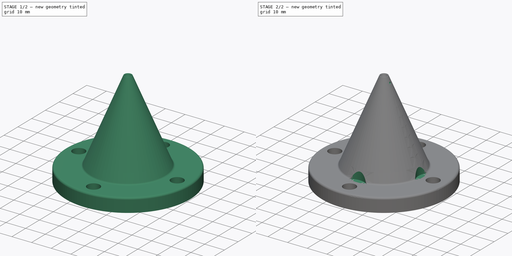
[diagram: build sequence overview — one tinted view per stage of 2, left to right]
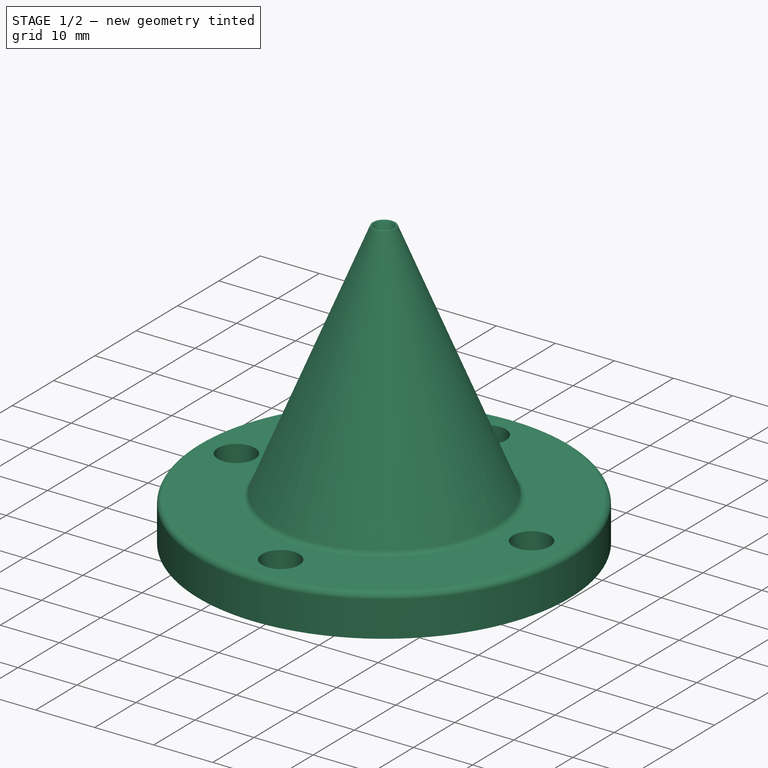
[diagram: stage 1 of 2 — iso view after this stage's code; geometry added in this stage tinted green]
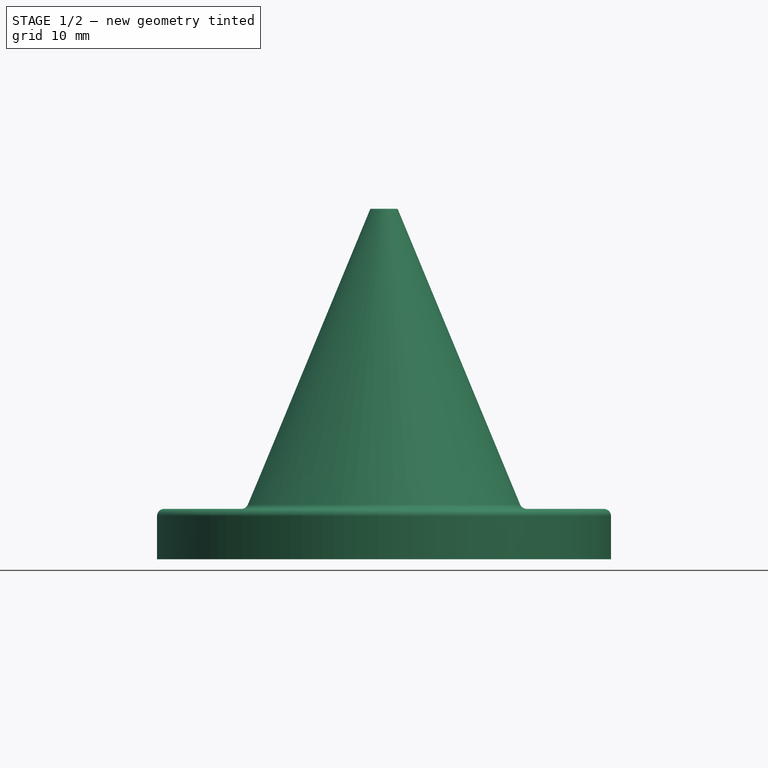
[diagram: stage 1 of 2 — front view after this stage's code; geometry added in this stage tinted green]
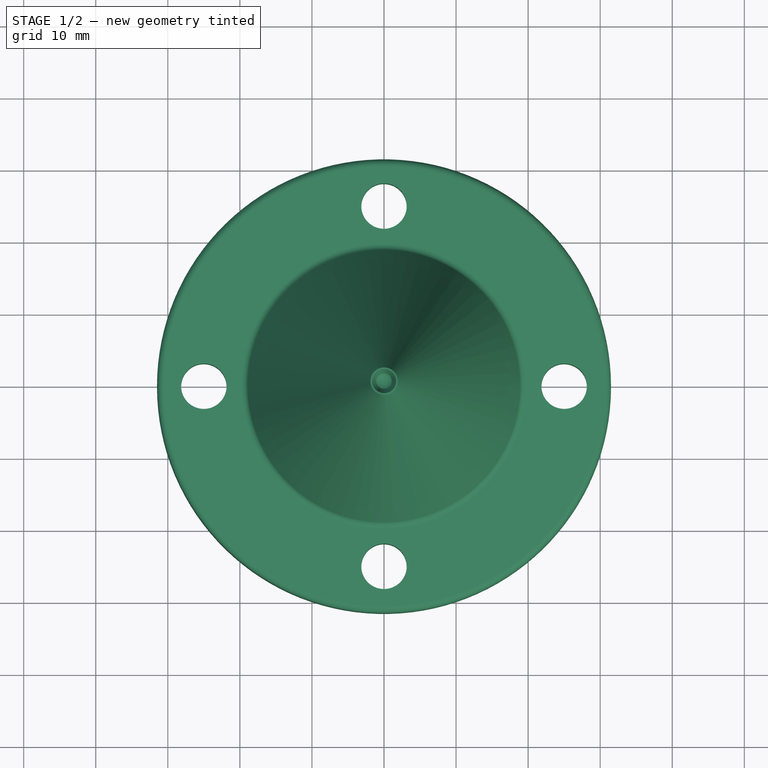
[diagram: stage 1 of 2 — top view after this stage's code; geometry added in this stage tinted green]
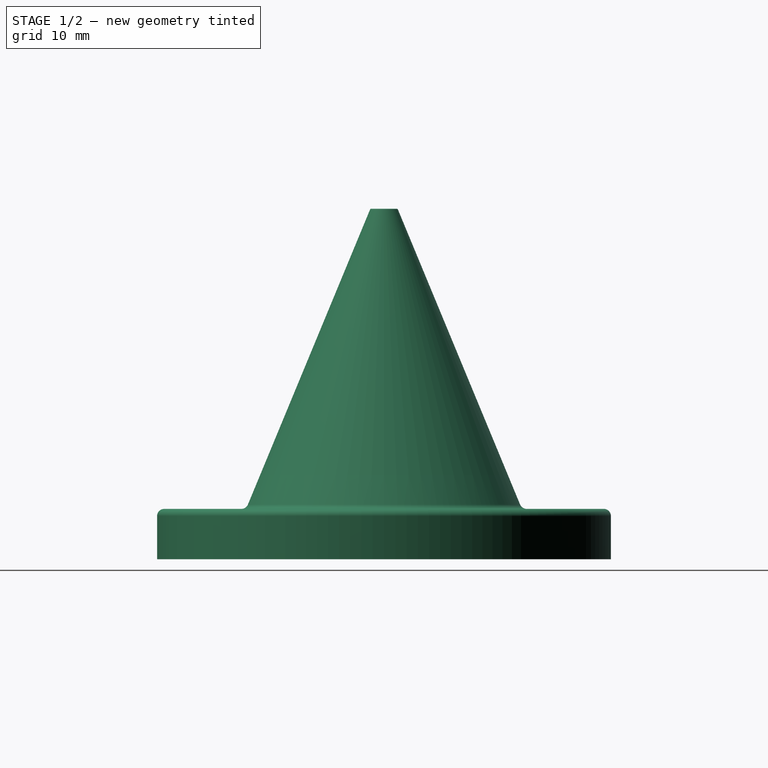
[diagram: stage 1 of 2 — right view after this stage's code; geometry added in this stage tinted green]
FCSTD DOCUMENT  (FreeCAD 0.20R29603 (Git))
Label: markup-tool
License: All rights reserved
LicenseURL: http://en.wikipedia.org/wiki/All_rights_reserved
objects: Sketcher::SketchObject×5, PartDesign::Pocket×2, PartDesign::Plane×2, PartDesign::Revolution×1, PartDesign::SubtractivePipe×1, PartDesign::Body×1, App::Part×1
note: 16 computed .brp shape members not serialized (recipe doc carries the construction recipe); baked Part::Feature solids carry a one-line shape summary decoded from their .brp

FEATURE [Sketcher::SketchObject] Sketch003
  FullyConstrained = true
  MapMode = 5
  Placement = pos=(0,0,0) rot=(1,0,0;1.5708rad)
  Support = -> [XZ_Plane004]
  sketch-geometry (15):
    g0: LineSegment StartX=0 StartY=0 StartZ=0 EndX=31.5 EndY=0 EndZ=0
    g1: LineSegment StartX=31.5 StartY=0 StartZ=0 EndX=31.5 EndY=6 EndZ=0
    g2: LineSegment StartX=30.5 StartY=7 StartZ=0 EndX=19.8092 EndY=7 EndZ=0
    g3: LineSegment StartX=18.8853 StartY=7.61732 StartZ=0 EndX=1.92593 EndY=48.5608 EndZ=0
    g4: ArcOfCircle CenterX=19.8092 CenterY=8 CenterZ=0 NormalX=0 NormalY=0 NormalZ=1 AngleXU=0 Radius=1 StartAngle=3.53429 EndAngle=4.71239
    g5: ArcOfCircle CenterX=30.5 CenterY=6 CenterZ=0 NormalX=0 NormalY=0 NormalZ=1 AngleXU=0 Radius=1 StartAngle=0 EndAngle=1.5708
    g6: LineSegment StartX=0 StartY=0 StartZ=0 EndX=-3e-16 EndY=46.8 EndZ=0
    g7: Circle CenterX=0 CenterY=48.5 CenterZ=0 NormalX=0 NormalY=0 NormalZ=1 AngleXU=0 Radius=1.5
    g8: ArcOfCircle CenterX=0 CenterY=48.5 CenterZ=0 NormalX=0 NormalY=0 NormalZ=1 AngleXU=0 Radius=1.7 StartAngle=4.71239 EndAngle=5.40053
    g9: ArcOfCircle CenterX=1.78735 CenterY=48.5034 CenterZ=0 NormalX=0 NormalY=0 NormalZ=1 AngleXU=0 Radius=0.15 StartAngle=0.392699 EndAngle=2.74889
    g10: LineSegment StartX=1.1311 StartY=49.4852 StartZ=0 EndX=1.90046 EndY=48.6019 EndZ=0
    g11: LineSegment StartX=1.64877 StartY=48.5608 StartZ=0 EndX=1.07967 EndY=47.1869 EndZ=0
    g12: GeomPoint X=0 Y=50 Z=0
    g13: GeomPoint X=0 Y=47 Z=0
    g14: GeomPoint X=1.49877 Y=48.5608 Z=0
  constraints (38):
    c: Coincident(g0,g-1)
    c: Horizontal(g0)
    c: Coincident(g1,g0)
    c: Vertical(g1)
    c: Horizontal(g2)
    c: Distance(g0) = 31.5
    c: Angle(g-2,g3) = 0.392699
    c: Tangent(g2,g4) = 1.5708
    c: Tangent(g3,g4) = 1.5708
    c: Radius(g4) = 1  'fillet'
    c: Tangent(g1,g5) = -1.5708
    c: Tangent(g2,g5) = -1.5708
    c: Equal(g5,g4)
    c: DistanceY(g0,g2) = 7
    c: Coincident(g6,g0)
    c: PointOnObject(g6,g-2)
    c: PointOnObject(g7,g-2)
    c: Diameter(g7) = 3
    c: Coincident(g8,g6)
    c: Tangent(g9,g3) = -1.5708
    c: Radius(g9) = 0.15
    c: Tangent(g10,g9) = 1.5708
    c: Tangent(g10,g7) = 1.5708
    c: Tangent(g7,g11)
    c: PointOnObject(g12,g7)
    c: PointOnObject(g12,g-2)
    c: DistanceY(g0,g12) = 50
    c: Angle(g-2,g10) = 0.716568
    c: Coincident(g8,g11)
    c: Coincident(g8,g7)
    c: Tangent(g11,g9) = -1.5708
    c: PointOnObject(g13,g7)
    c: PointOnObject(g13,g-2)
    c: DistanceY(g6,g13) = 0.2
    c: Angle(g11,g3) = 0.785398
    c: PointOnObject(g14,g7)
    c: Horizontal(g9,g14)
    c: Distance(g9,g14) = 0.15
FEATURE [Sketcher::SketchObject] Sketch004
  FullyConstrained = true
  MapMode = 5
  Support = -> [XY_Plane004]
  sketch-geometry (5):
    g0: Circle CenterX=0 CenterY=0 CenterZ=0 NormalX=0 NormalY=0 NormalZ=1 AngleXU=0 Radius=25
    g1: Circle CenterX=25 CenterY=0 CenterZ=0 NormalX=0 NormalY=0 NormalZ=1 AngleXU=0 Radius=3.15
    g2: Circle CenterX=-25 CenterY=0 CenterZ=0 NormalX=0 NormalY=0 NormalZ=1 AngleXU=0 Radius=3.15
    g3: Circle CenterX=0 CenterY=25 CenterZ=0 NormalX=0 NormalY=0 NormalZ=1 AngleXU=0 Radius=3.15
    g4: Circle CenterX=0 CenterY=-25 CenterZ=0 NormalX=0 NormalY=0 NormalZ=1 AngleXU=0 Radius=3.15
  constraints (14):
    c: Diameter(g0) = 50
    c: PointOnObject(g1,g-1)
    c: PointOnObject(g2,g-1)
    c: PointOnObject(g3,g-2)
    c: PointOnObject(g4,g-2)
    c: Equal(g1,g3)
    c: Equal(g3,g2)
    c: Equal(g2,g4)
    c: Coincident(g0,g-1)
    c: Diameter(g1) = 6.3
    c: PointOnObject(g1,g0)
    c: PointOnObject(g3,g0)
    c: PointOnObject(g2,g0)
    c: PointOnObject(g4,g0)
FEATURE [PartDesign::Revolution] Revolution
  Angle = 360
  Axis = (0,-2e-16,1)
  Base = (0,0,0)
  Placement = pos=(0,0,0) rot=(1,0,0;1.5708rad)
  Profile = -> Sketch003
  ReferenceAxis = -> Sketch003 [V_Axis]
  Reversed = true
FEATURE [PartDesign::Pocket] Pocket
  BaseFeature = -> Revolution
  Direction = (0,0,-1)
  Length = 5
  Length2 = 5
  Placement = pos=(0,0,0) rot=(1,0,0;1.5708rad)
  Profile = -> Sketch004
  ReferenceAxis = -> Sketch004 [N_Axis]
  Reversed = true
  Type = 1
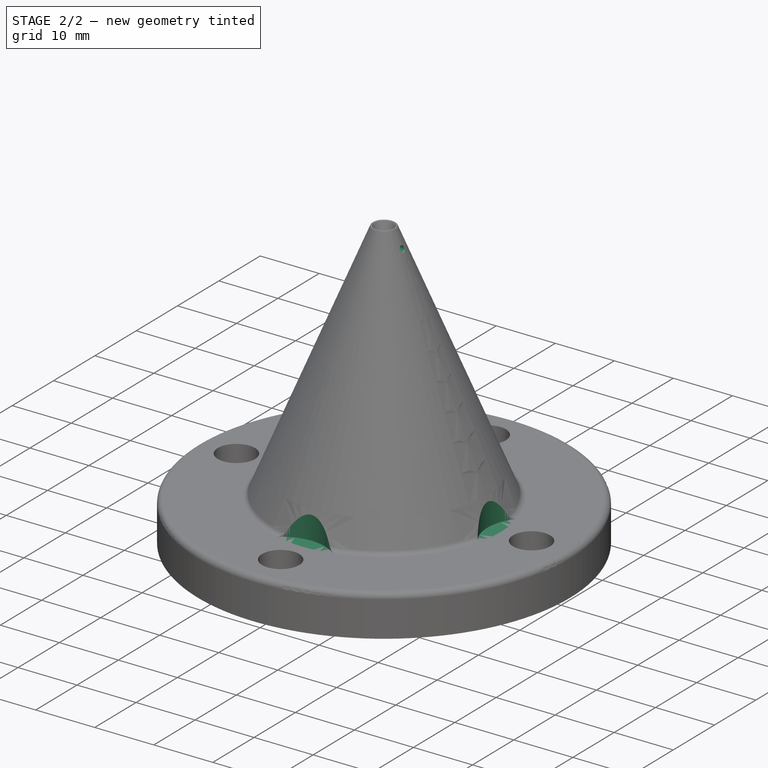
[diagram: stage 2 of 2 — iso view after this stage's code; geometry added in this stage tinted green]
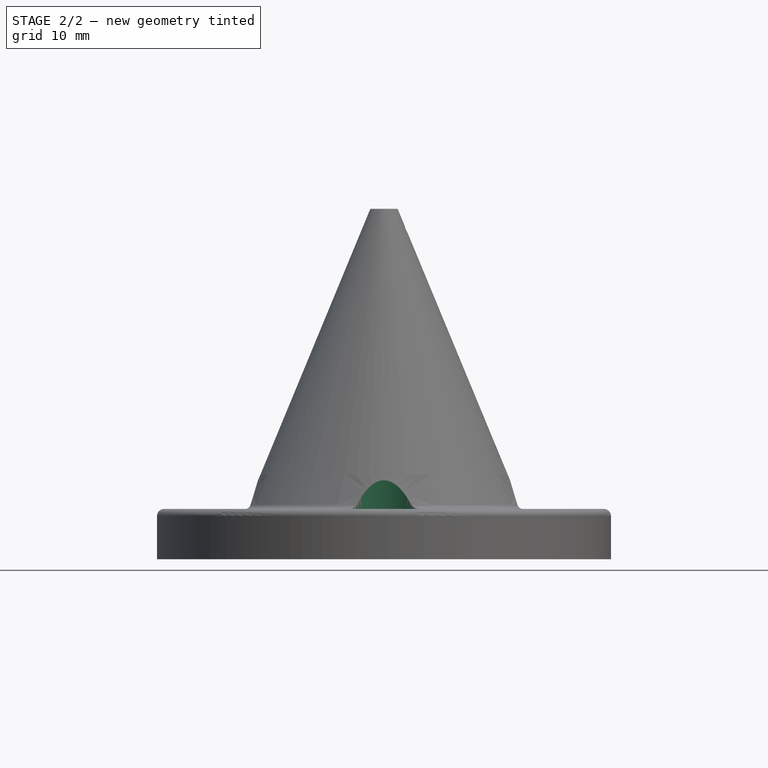
[diagram: stage 2 of 2 — front view after this stage's code; geometry added in this stage tinted green]
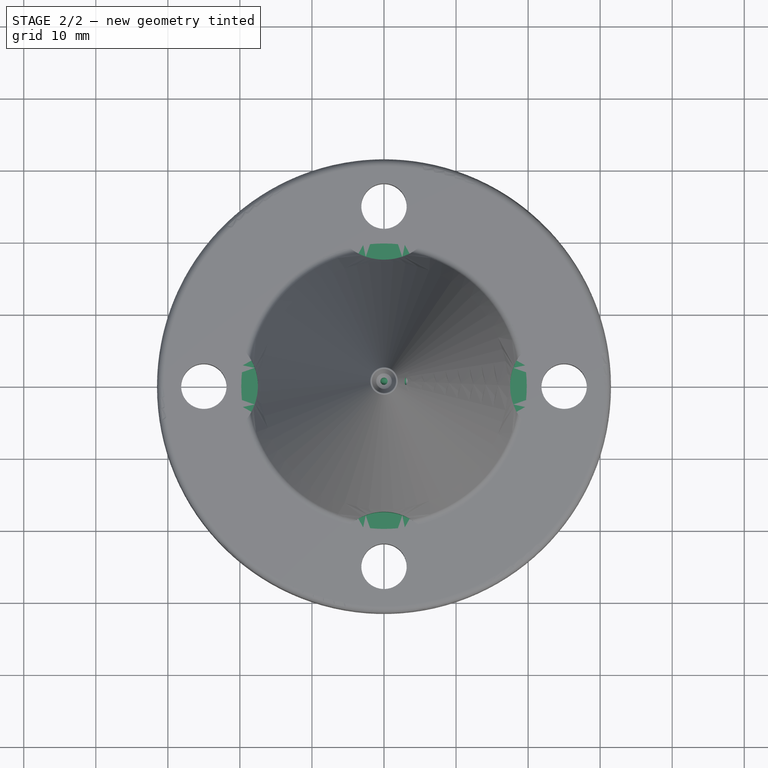
[diagram: stage 2 of 2 — top view after this stage's code; geometry added in this stage tinted green]
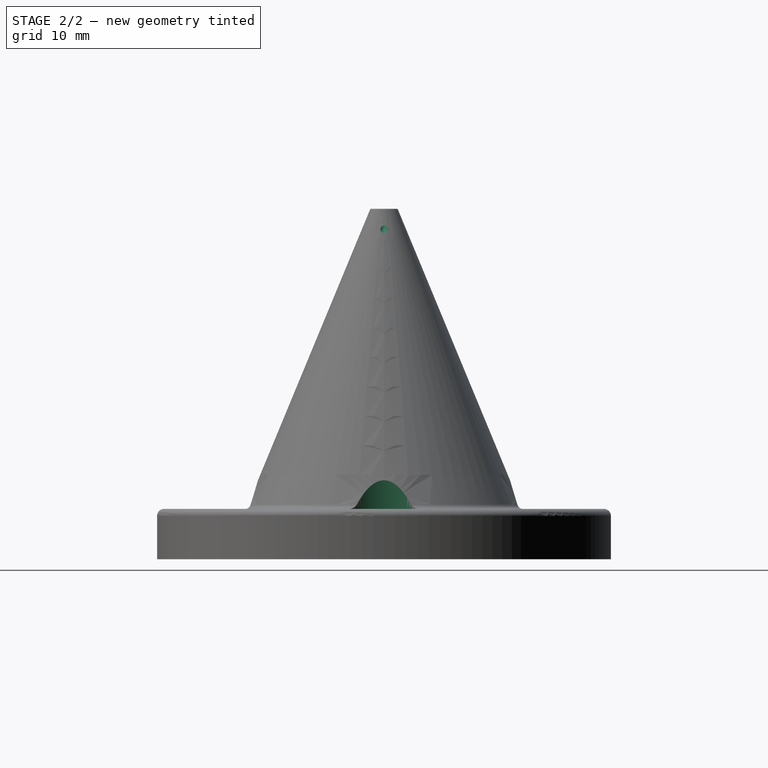
[diagram: stage 2 of 2 — right view after this stage's code; geometry added in this stage tinted green]
FEATURE [PartDesign::Plane] DatumPlane
  Length = 60
  MapMode = 5
  Placement = pos=(0,-1.6e-15,7) rot=(0,0,1;3.14159rad)
  ResizeMode = 0
  Support = -> [Pocket]
  Width = 60
FEATURE [Sketcher::SketchObject] Sketch005
  FullyConstrained = true
  MapMode = 5
  Placement = pos=(0,-1.6e-15,7) rot=(0,0,1;3.14159rad)
  Support = -> [DatumPlane]
  sketch-geometry (5):
    g0: Circle CenterX=0 CenterY=0 CenterZ=0 NormalX=0 NormalY=0 NormalZ=1 AngleXU=0 Radius=25
    g1: Circle CenterX=25 CenterY=0 CenterZ=0 NormalX=0 NormalY=0 NormalZ=1 AngleXU=0 Radius=7.5
    g2: Circle CenterX=0 CenterY=25 CenterZ=0 NormalX=0 NormalY=0 NormalZ=1 AngleXU=0 Radius=7.5
    g3: Circle CenterX=-25 CenterY=0 CenterZ=0 NormalX=0 NormalY=0 NormalZ=1 AngleXU=0 Radius=7.5
    g4: Circle CenterX=0 CenterY=-25 CenterZ=0 NormalX=0 NormalY=0 NormalZ=1 AngleXU=0 Radius=7.5
  constraints (14):
    c: Coincident(g0,g-1)
    c: PointOnObject(g1,g0)
    c: PointOnObject(g2,g0)
    c: PointOnObject(g3,g0)
    c: PointOnObject(g4,g0)
    c: PointOnObject(g1,g-1)
    c: PointOnObject(g2,g-2)
    c: PointOnObject(g3,g-1)
    c: PointOnObject(g4,g-2)
    c: Equal(g1,g2)
    c: Equal(g2,g3)
    c: Equal(g3,g4)
    c: Diameter(g0) = 50
    c: Diameter(g1) = 15
FEATURE [PartDesign::Pocket] Pocket001
  BaseFeature = -> Pocket
  Direction = (0,2e-16,-1)
  Length = 5
  Length2 = 5
  Placement = pos=(0,0,0) rot=(1,0,0;1.5708rad)
  Profile = -> Sketch005
  ReferenceAxis = -> Sketch005 [N_Axis]
  Reversed = true
  Type = 1
FEATURE [Sketcher::SketchObject] Sketch  label="path"
  ExternalGeometry = -> [Pocket001]
  FullyConstrained = true
  MapMode = 5
  Placement = pos=(0,0,0) rot=(1,0,0;1.5708rad)
  Support = -> [XZ_Plane004]
  sketch-geometry (4):
    g0: ArcOfCircle CenterX=1 CenterY=46.8 CenterZ=0 NormalX=0 NormalY=0 NormalZ=1 AngleXU=0 Radius=1 StartAngle=3.14159 EndAngle=4.71239
    g1: LineSegment StartX=1 StartY=45.8 StartZ=0 EndX=3.06949 EndY=45.8 EndZ=0
    g2: LineSegment StartX=-3e-16 StartY=46.8 StartZ=0 EndX=0 EndY=47.1869 EndZ=0
    g3: LineSegment StartX=3.06949 StartY=45.8 StartZ=0 EndX=4.06949 EndY=45.8 EndZ=0
  constraints (13):
    c: Coincident(g0,g-3)
    c: Horizontal(g0,g0)
    c: Coincident(g1,g0)
    c: PointOnObject(g1,g-4)
    c: Horizontal(g1)
    c: Tangent(g1,g0,g0) = -1.5708
    c: Radius(g0) = 1
    c: Coincident(g2,g0)
    c: PointOnObject(g2,g-2)
    c: Horizontal(g-5,g2)
    c: Coincident(g3,g1)
    c: Horizontal(g3)
    c: DistanceX(g3,g3) = 1
FEATURE [PartDesign::Plane] DatumPlane001
  Length = 60
  MapMode = 1
  Placement = pos=(0,-1.05e-14,47.1869) rot=(0,0,1;0rad)
  ResizeMode = 0
  Support = -> [Sketch]
  Width = 60
FEATURE [Sketcher::SketchObject] Sketch006  label="profile"
  FullyConstrained = true
  MapMode = 5
  Placement = pos=(0,-1.05e-14,47.1869) rot=(0,0,1;0rad)
  Support = -> [DatumPlane001]
  sketch-geometry (1):
    g0: Circle CenterX=0 CenterY=0 CenterZ=0 NormalX=0 NormalY=0 NormalZ=1 AngleXU=0 Radius=0.5
  constraints (2):
    c: Coincident(g0,g-1)
    c: Diameter(g0) = 1
FEATURE [PartDesign::SubtractivePipe] SubtractivePipe
  AuxilleryCurvelinear = true
  AuxillerySpineTangent = false
  BaseFeature = -> Pocket001
  Binormal = (0,0,0)
  Mode = 0
  Placement = pos=(0,0,0) rot=(1,0,0;1.5708rad)
  Profile = -> Sketch006
  Spine = -> Sketch
  SpineTangent = false
  Transformation = 0
  Transition = 0
FEATURE [PartDesign::Body] Body001
  Group = -> [Sketch003,Sketch004,Sketch005,Revolution,Pocket,DatumPlane,Pocket001,Sketch,DatumPlane001,Sketch006,SubtractivePipe]
  Origin = -> Origin004
  Tip = -> SubtractivePipe
FEATURE [App::Part] Part002  label="markuptool_ball"
  Group = -> [Body001]
  Origin = -> Origin003
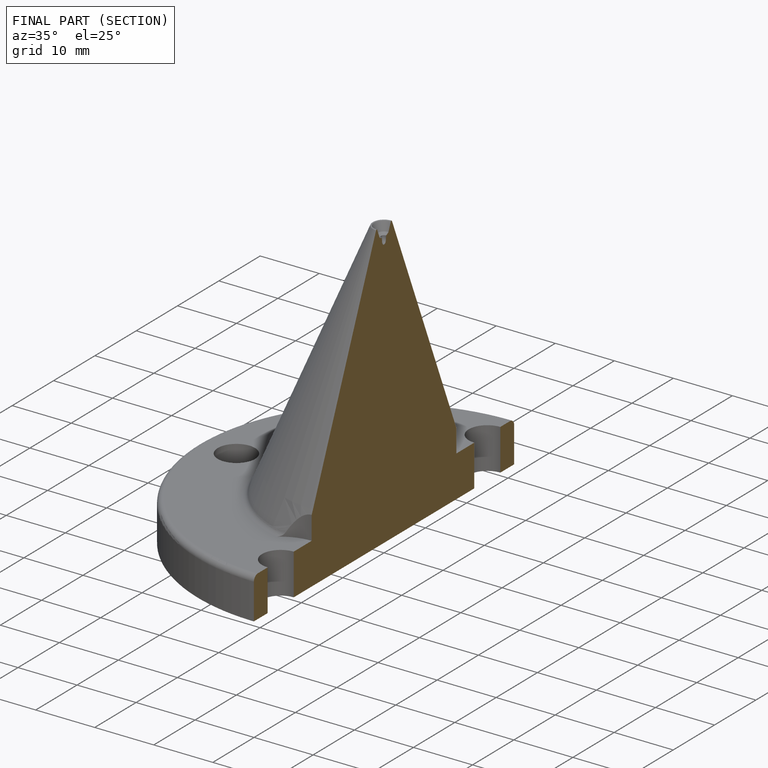
[diagram: finished part — half-section view (interior)]
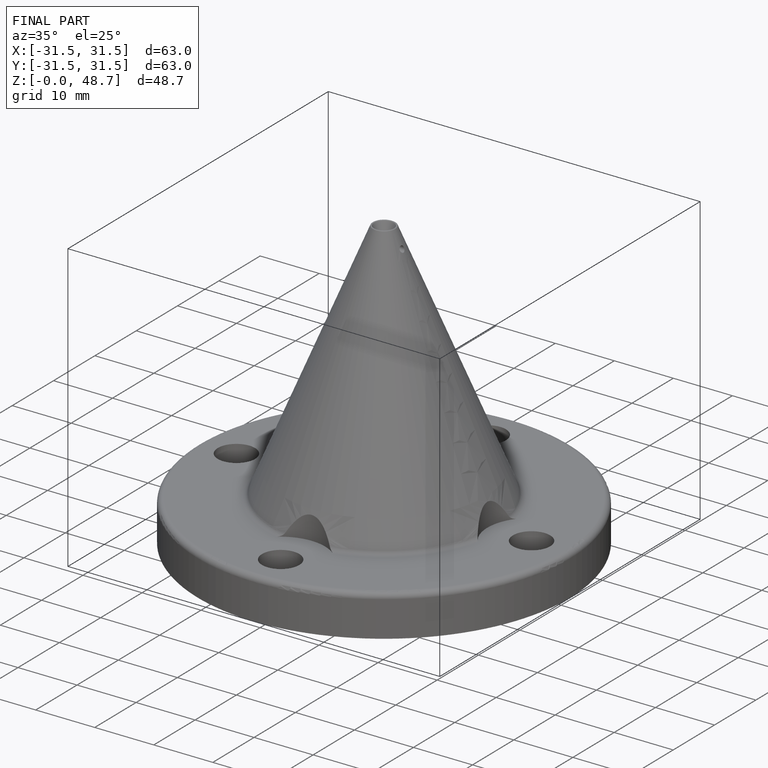
[diagram: finished part — iso view with bounding-box wireframe]
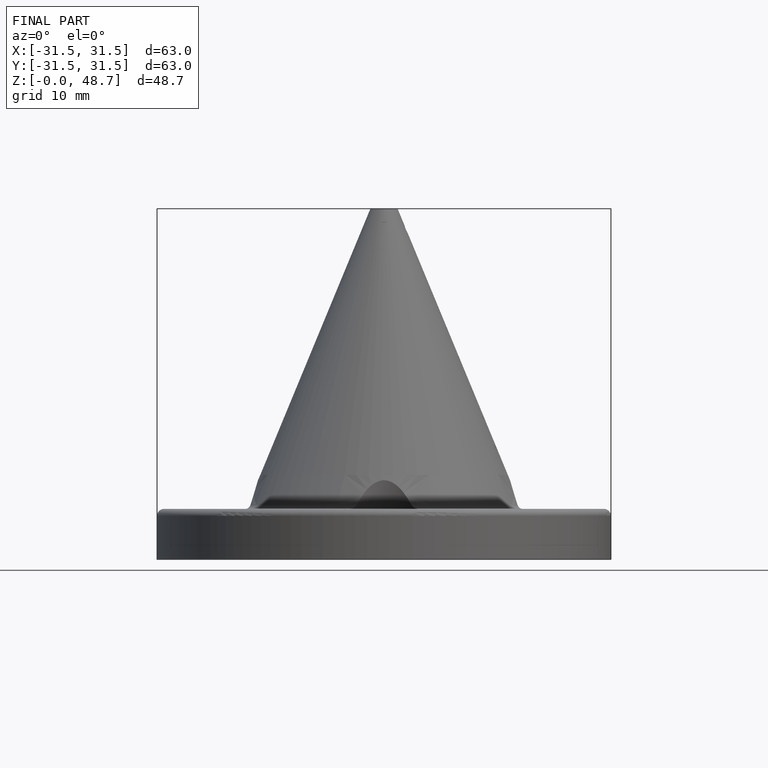
[diagram: finished part — front view with bounding-box wireframe]
